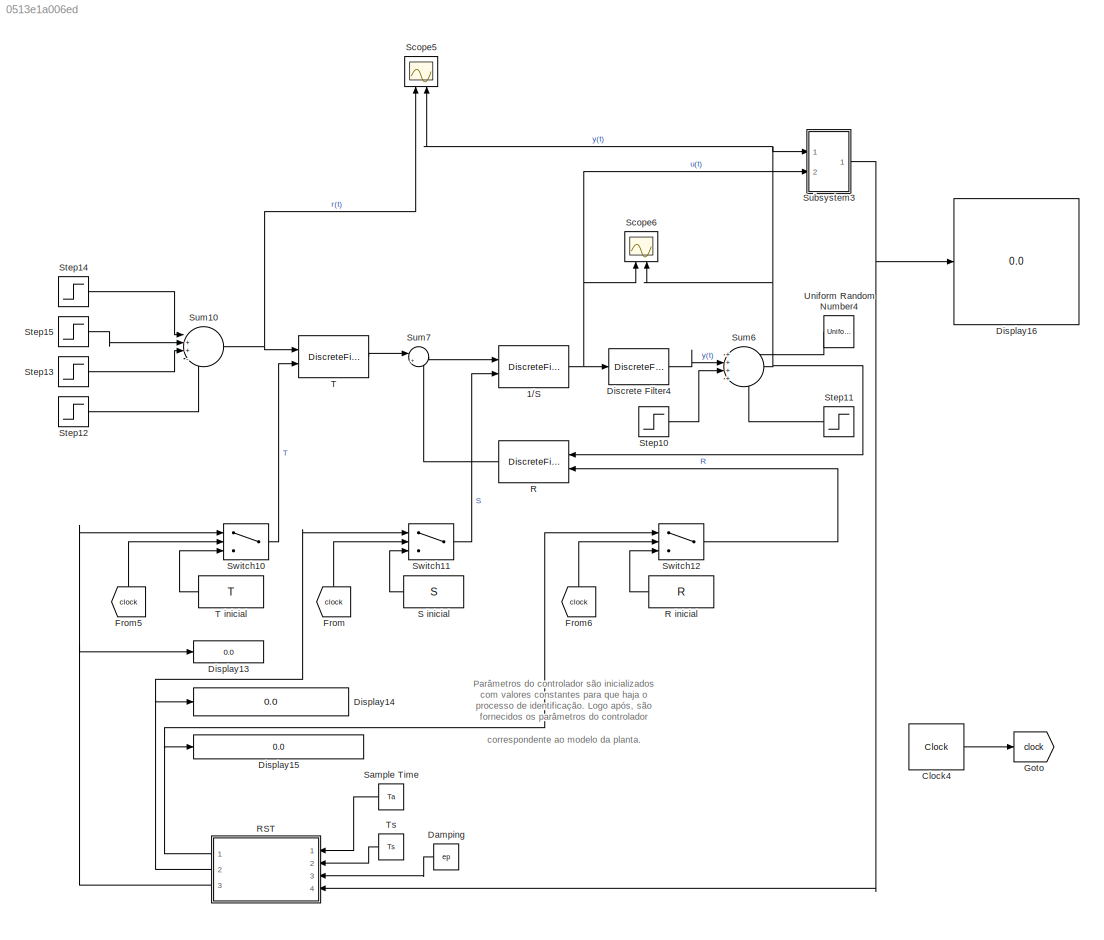
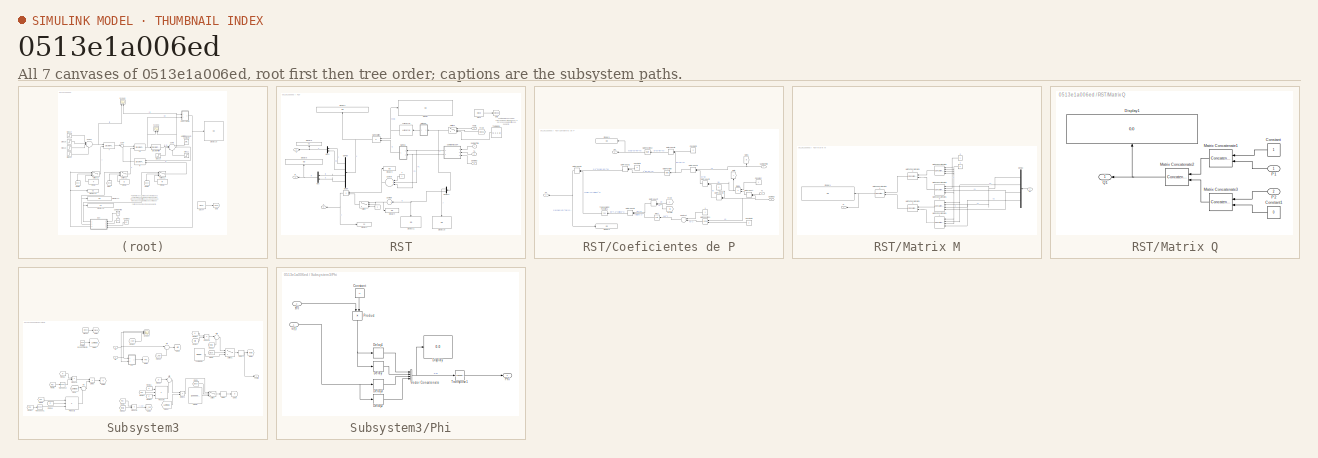
[diagram: thumbnail index - all 7 canvases of the model, root first then tree order]
MODEL slx_0513e1a006ed
KIND model
CONFIG AbsTol = auto
CONFIG EnableMultiTasking = off
CONFIG FixedStep = auto
CONFIG MaxStep = auto
CONFIG MinStep = auto
CONFIG RelTol = 1e-3
CONFIG SampleTimeConstraint = Unconstrained
CONFIG Solver = VariableStepAuto
CONFIG SolverName = VariableStepAuto
CONFIG StartTime = 0.0
CONFIG StopTime = 100
BLOCK [DiscreteFilter] 1//S
  Denominator = 1
  DenominatorSource = Input port
  InputPortMap = u0,p3
  Numerator = 1
  Ports = [2, 1]
  a0EqualsOne = on
BLOCK [Clock] Clock4
  DisplayTime = on
BLOCK [Constant] Damping
  Value = ep
BLOCK [DiscreteFilter] Discrete Filter4
  Denominator = A
  InputPortMap = u0
  Numerator = B
  Ports = [1, 1]
  SampleTime = 0.1
  a0EqualsOne = on
BLOCK [Display] Display13
  Decimation = 1
  Ports = [1]
BLOCK [Display] Display14
  Decimation = 1
  Ports = [1]
BLOCK [Display] Display15
  Decimation = 1
  Ports = [1]
BLOCK [Display] Display16
  Decimation = 1
  Ports = [1]
BLOCK [From] From
  GotoTag = clock
BLOCK [From] From5
  GotoTag = clock
BLOCK [From] From6
  GotoTag = clock
BLOCK [Goto] Goto
  GotoTag = clock
BLOCK [DiscreteFilter] R
  Denominator = 1
  InputPortMap = u0,p1
  Numerator = [-620.2 131.3]
  NumeratorSource = Input port
  Ports = [2, 1]
BLOCK [Constant] R inicial 
  Value = R
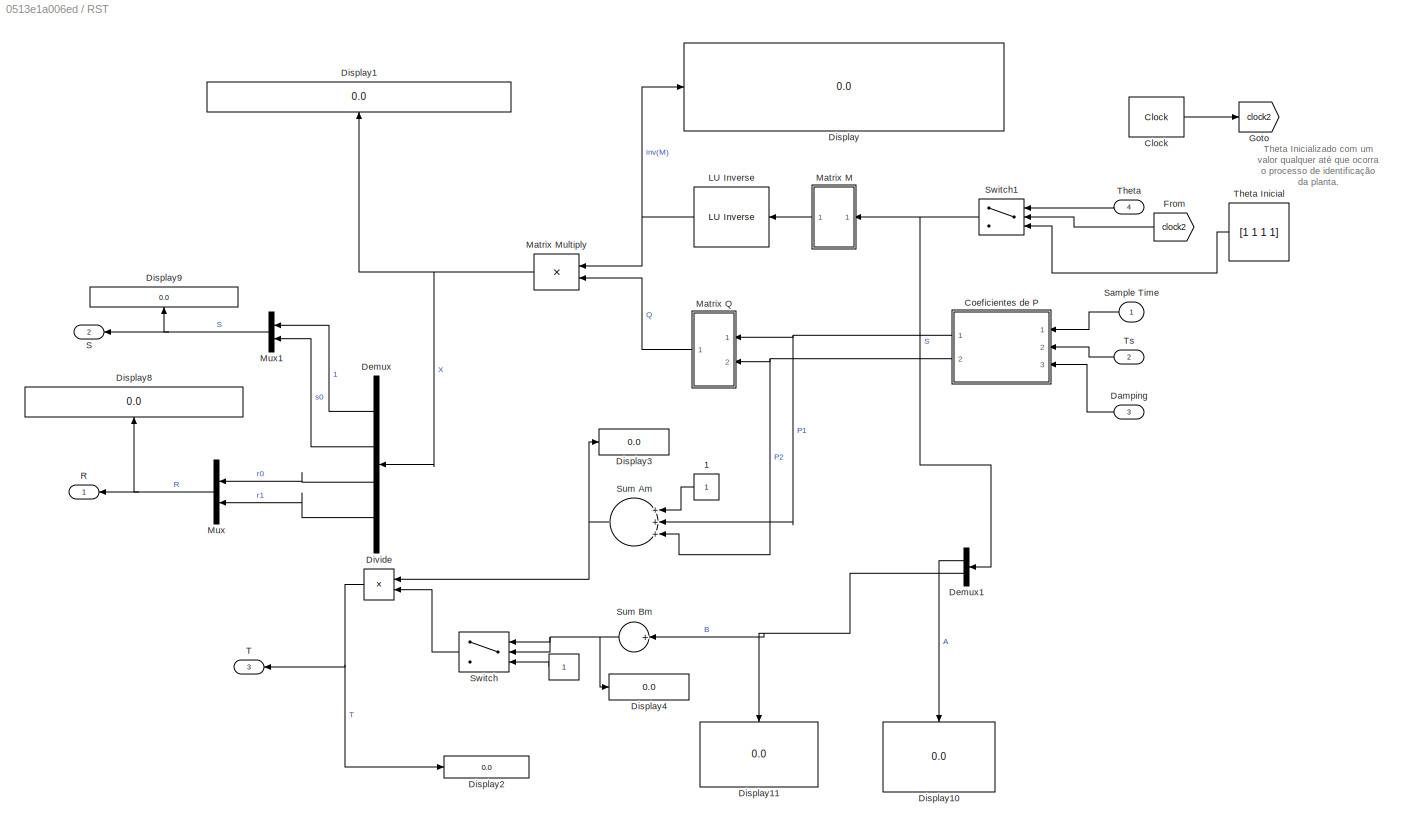
BLOCK [SubSystem] RST
  Ports = [4, 3]
  RequestExecContextInheritance = off
BLOCK [Constant] RST/ 
BLOCK [Reference] RST/ LU Inverse  REF=dspinverses/ LU Inverse
  Ports = [1, 1]
  SourceBlock = dspinverses/ LU Inverse
  SourceProductBaseCode = DS
  SourceProductName = DSP System Toolbox
  SourceType = LU Inverse
BLOCK [Constant] RST/1
BLOCK [Clock] RST/Clock
  DisplayTime = on
BLOCK [SubSystem] RST/Coeficientes de P
  Ports = [3, 2]
  RequestExecContextInheritance = off
BLOCK [Constant] RST/Coeficientes de P/ 
  Value = -1
BLOCK [Constant] RST/Coeficientes de P/1
BLOCK [Constant] RST/Coeficientes de P/Constant
  Value = 4
BLOCK [Constant] RST/Coeficientes de P/Constant1
  Value = -2
BLOCK [Constant] RST/Coeficientes de P/Constant2
  Value = 2
BLOCK [Constant] RST/Coeficientes de P/Constant3
  Value = 2
BLOCK [Inport] RST/Coeficientes de P/Damping
  IconDisplay = Port number
  Port = 3
BLOCK [Display] RST/Coeficientes de P/Display1
  Decimation = 1
  Ports = [1]
BLOCK [Display] RST/Coeficientes de P/Display3
  Decimation = 1
  Ports = [1]
BLOCK [Product] RST/Coeficientes de P/Divide
  InputSameDT = off
  Inputs = */
  OutDataTypeStr = Inherit: Inherit via internal rule
  Ports = [2, 1]
  RndMeth = Floor
  SaturateOnIntegerOverflow = off
BLOCK [DotProduct] RST/Coeficientes de P/Dot Product
  OutDataTypeStr = Inherit: Inherit via internal rule
BLOCK [DotProduct] RST/Coeficientes de P/Dot Product1
  OutDataTypeStr = Inherit: Inherit via internal rule
BLOCK [DotProduct] RST/Coeficientes de P/Dot Product2
  OutDataTypeStr = Inherit: Inherit via internal rule
BLOCK [DotProduct] RST/Coeficientes de P/Dot Product3
  OutDataTypeStr = Inherit: Inherit via internal rule
BLOCK [DotProduct] RST/Coeficientes de P/Dot Product4
  OutDataTypeStr = Inherit: Inherit via internal rule
BLOCK [DotProduct] RST/Coeficientes de P/Dot Product5
  OutDataTypeStr = Inherit: Inherit via internal rule
BLOCK [DotProduct] RST/Coeficientes de P/Dot Product6
  OutDataTypeStr = Inherit: Inherit via internal rule
BLOCK [DotProduct] RST/Coeficientes de P/Dot Product7
  OutDataTypeStr = Inherit: Inherit via internal rule
BLOCK [DotProduct] RST/Coeficientes de P/Dot Product8
  OutDataTypeStr = Inherit: Inherit via internal rule
BLOCK [From] RST/Coeficientes de P/From
BLOCK [From] RST/Coeficientes de P/From1
  GotoTag = B
BLOCK [Goto] RST/Coeficientes de P/Goto
BLOCK [Goto] RST/Coeficientes de P/Goto1
  GotoTag = B
BLOCK [Math] RST/Coeficientes de P/Math Function
  Ports = [1, 1]
BLOCK [Math] RST/Coeficientes de P/Math Function1
  Operator = pow
  Ports = [2, 1]
BLOCK [Math] RST/Coeficientes de P/Math Function2
  Ports = [1, 1]
BLOCK [Outport] RST/Coeficientes de P/P1
  IconDisplay = Port number
BLOCK [Outport] RST/Coeficientes de P/P2
  IconDisplay = Port number
  Port = 2
BLOCK [Inport] RST/Coeficientes de P/Sample Time
  IconDisplay = Port number
BLOCK [Sqrt] RST/Coeficientes de P/Sqrt
BLOCK [Sum] RST/Coeficientes de P/Subtract
  InputSameDT = off
  Inputs = +-
  OutDataTypeStr = Inherit: Inherit via internal rule
  Ports = [2, 1]
  SaturateOnIntegerOverflow = off
BLOCK [Trigonometry] RST/Coeficientes de P/Trigonometric Function1
  Operator = cos
  Ports = [1, 1]
BLOCK [Inport] RST/Coeficientes de P/Ts
  IconDisplay = Port number
  Port = 2
BLOCK [Inport] RST/Damping
  IconDisplay = Port number
  Port = 3
BLOCK [Demux] RST/Demux
  DisplayOption = bar
  Ports = [1, 4]
BLOCK [Demux] RST/Demux1
  DisplayOption = bar
  Outputs = 2
  Ports = [1, 2]
BLOCK [Display] RST/Display
  Decimation = 1
  Ports = [1]
BLOCK [Display] RST/Display1
  Decimation = 1
  Ports = [1]
BLOCK [Display] RST/Display10
  Decimation = 1
  Ports = [1]
BLOCK [Display] RST/Display11
  Decimation = 1
  Ports = [1]
BLOCK [Display] RST/Display2
  Decimation = 1
  Ports = [1]
BLOCK [Display] RST/Display3
  Decimation = 1
  Ports = [1]
BLOCK [Display] RST/Display4
  Decimation = 1
  Ports = [1]
BLOCK [Display] RST/Display8
  Decimation = 1
  Ports = [1]
BLOCK [Display] RST/Display9
  Decimation = 1
  Ports = [1]
BLOCK [Product] RST/Divide
  InputSameDT = off
  Inputs = */
  OutDataTypeStr = Inherit: Inherit via internal rule
  Ports = [2, 1]
  RndMeth = Floor
  SaturateOnIntegerOverflow = off
BLOCK [From] RST/From
  GotoTag = clock2
BLOCK [Goto] RST/Goto
  GotoTag = clock2
BLOCK [SubSystem] RST/Matrix M
  Ports = [1, 1]
  RequestExecContextInheritance = off
BLOCK [Constant] RST/Matrix M/ 1
  Value = 0
BLOCK [Constant] RST/Matrix M/2
BLOCK [Demux] RST/Matrix M/Demux
  DisplayOption = bar
  Ports = [1, 4]
BLOCK [Display] RST/Matrix M/Display1
  Decimation = 1
  Ports = [1]
BLOCK [Inport] RST/Matrix M/In1
  IconDisplay = Port number
BLOCK [Outport] RST/Matrix M/M
  IconDisplay = Port number
BLOCK [Concatenate] RST/Matrix M/Matrix Concatenate10
  ConcatenateDimension = 2
  Mode = Multidimensional array
  NumInputs = 4
  Ports = [4, 1]
BLOCK [Concatenate] RST/Matrix M/Matrix Concatenate11
  ConcatenateDimension = 2
  Mode = Multidimensional array
  NumInputs = 4
  Ports = [4, 1]
BLOCK [Concatenate] RST/Matrix M/Matrix Concatenate12
  Mode = Multidimensional array
  Ports = [2, 1]
BLOCK [Concatenate] RST/Matrix M/Matrix Concatenate13
  Mode = Multidimensional array
  Ports = [2, 1]
BLOCK [Concatenate] RST/Matrix M/Matrix Concatenate14
  Mode = Multidimensional array
  Ports = [2, 1]
BLOCK [Concatenate] RST/Matrix M/Matrix Concatenate6
  ConcatenateDimension = 2
  Mode = Multidimensional array
  NumInputs = 4
  Ports = [4, 1]
BLOCK [Concatenate] RST/Matrix M/Matrix Concatenate9
  ConcatenateDimension = 2
  Mode = Multidimensional array
  NumInputs = 4
  Ports = [4, 1]
BLOCK [Product] RST/Matrix Multiply
  InputSameDT = off
  Multiplication = Matrix(*)
  OutDataTypeStr = Inherit: Inherit via internal rule
  Ports = [2, 1]
  RndMeth = Floor
  SaturateOnIntegerOverflow = off
BLOCK [SubSystem] RST/Matrix Q
  Ports = [2, 1]
  RequestExecContextInheritance = off
BLOCK [Constant] RST/Matrix Q/Constant
BLOCK [Constant] RST/Matrix Q/Constant1
  Value = 0
BLOCK [Display] RST/Matrix Q/Display1
  Decimation = 1
  Ports = [1]
BLOCK [Concatenate] RST/Matrix Q/Matrix Concatenate1
  Mode = Multidimensional array
  Ports = [2, 1]
BLOCK [Concatenate] RST/Matrix Q/Matrix Concatenate2
  Mode = Multidimensional array
  Ports = [2, 1]
BLOCK [Concatenate] RST/Matrix Q/Matrix Concatenate3
  Mode = Multidimensional array
  Ports = [2, 1]
BLOCK [Inport] RST/Matrix Q/P1
  IconDisplay = Port number
BLOCK [Inport] RST/Matrix Q/P2
  IconDisplay = Port number
  Port = 2
BLOCK [Outport] RST/Matrix Q/Q1
  IconDisplay = Port number
BLOCK [Mux] RST/Mux
  DisplayOption = bar
  Inputs = 2
  Ports = [2, 1]
BLOCK [Mux] RST/Mux1
  DisplayOption = bar
  Inputs = 2
  Ports = [2, 1]
BLOCK [Outport] RST/R
  IconDisplay = Port number
BLOCK [Outport] RST/S
  IconDisplay = Port number
  Port = 2
BLOCK [Inport] RST/Sample Time
  IconDisplay = Port number
BLOCK [Sum] RST/Sum Am
  InputSameDT = off
  Inputs = +++
  OutDataTypeStr = Inherit: Inherit via internal rule
  Ports = [3, 1]
  SaturateOnIntegerOverflow = off
BLOCK [Sum] RST/Sum Bm
  InputSameDT = off
  Inputs = +
  OutDataTypeStr = Inherit: Inherit via internal rule
  Ports = [1, 1]
  SaturateOnIntegerOverflow = off
BLOCK [Switch] RST/Switch
  Criteria = u2 > Threshold
  InputSameDT = off
  SaturateOnIntegerOverflow = off
BLOCK [Switch] RST/Switch1
  Criteria = u2 > Threshold
  InputSameDT = off
  SaturateOnIntegerOverflow = off
  Threshold = 1
BLOCK [Outport] RST/T
  IconDisplay = Port number
  Port = 3
BLOCK [Inport] RST/Theta
  IconDisplay = Port number
  Port = 4
BLOCK [Constant] RST/Theta Inicial
  Value = [1 1 1 1]
BLOCK [Inport] RST/Ts
  IconDisplay = Port number
  Port = 2
BLOCK [Constant] S inicial 
  Value = S
BLOCK [Constant] Sample Time
  Value = Ta
BLOCK [Scope] Scope5
  Floating = off
  NumInputPorts = 2
  Ports = [2]
  ScopeSpecificationString = Simulink.scopes.TimeScopeBlockCfg('CurrentConfiguration', extmgr.ConfigurationSet(extmgr.Configuration('Core','General UI',true),extmgr.Configuration('Core','Source UI',true),extmgr.Configuration('Sources','WiredSimulink',true,'DataLoggingVariableName','ScopeData7'),extmgr.Configuration('Visuals','Time Domain',true,'SerializedDisplays',{struct('MinYLimReal','-44407190189782154755413876628075905370...<+2514ch>
BLOCK [Scope] Scope6
  Floating = off
  NumInputPorts = 2
  Ports = [2]
  ScopeSpecificationString = Simulink.scopes.TimeScopeBlockCfg('CurrentConfiguration', extmgr.ConfigurationSet(extmgr.Configuration('Core','General UI',true,'FigureColor',[0.156862745098039 0.156862745098039 0.156862745098039]),extmgr.Configuration('Core','Source UI',true),extmgr.Configuration('Sources','WiredSimulink',true,'DataLoggingVariableName','ScopeData8','DataLoggingSaveFormat','StructureWithTime','DataLoggingDecimati...<+3156ch>
BLOCK [Step] Step10
  SampleTime = 0
  Time = 50
BLOCK [Step] Step11
  After = -1
  SampleTime = 0
  Time = 51
BLOCK [Step] Step12
  SampleTime = 0
  Time = 30
BLOCK [Step] Step13
  After = 2
  SampleTime = 0
  Time = 20
BLOCK [Step] Step14
  SampleTime = 0
  Time = 0
BLOCK [Step] Step15
  After = 3
  SampleTime = 0
  Time = 10
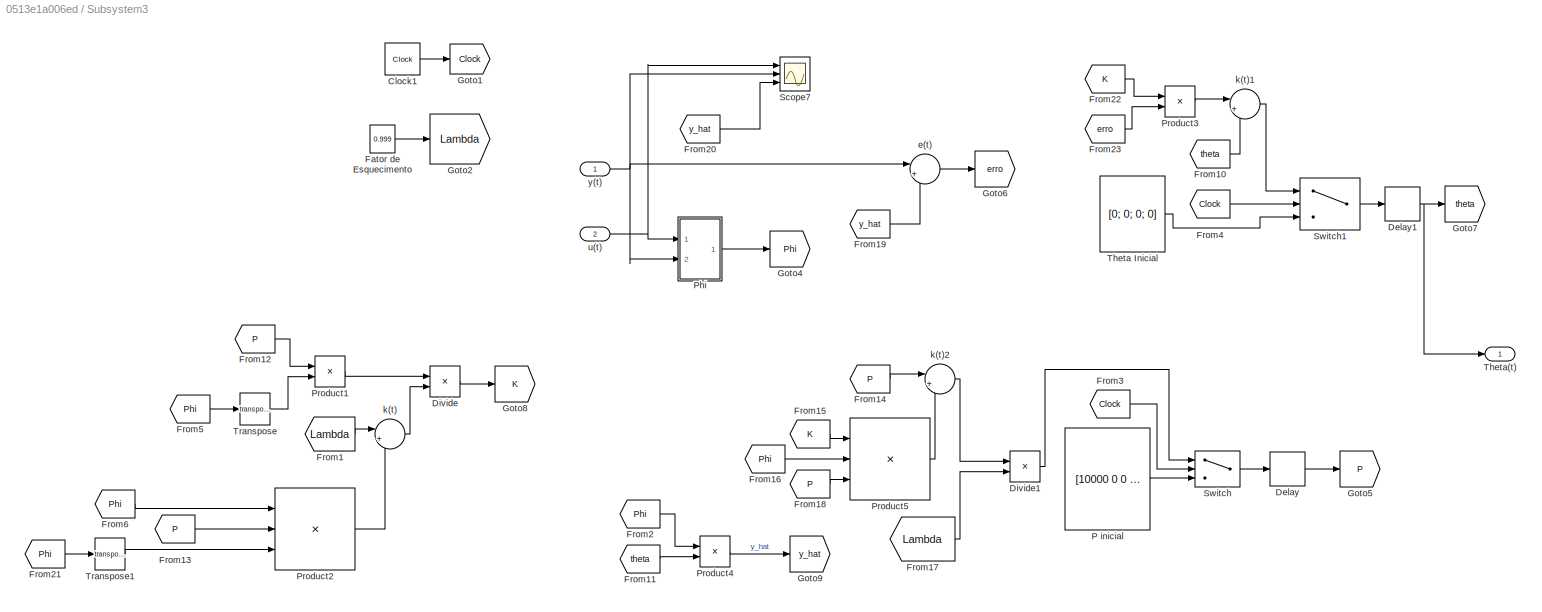
BLOCK [SubSystem] Subsystem3
  Ports = [2, 1]
  RequestExecContextInheritance = off
BLOCK [Clock] Subsystem3/Clock1
BLOCK [Delay] Subsystem3/Delay
  DelayLength = 1
  InitialCondition = 0
  InputPortMap = u0
  Ports = [1, 1]
BLOCK [Delay] Subsystem3/Delay1
  DelayLength = 1
  InitialCondition = 0
  InputPortMap = u0
  Ports = [1, 1]
BLOCK [Product] Subsystem3/Divide
  InputSameDT = off
  Inputs = */
  OutDataTypeStr = Inherit: Inherit via internal rule
  Ports = [2, 1]
  RndMeth = Floor
  SaturateOnIntegerOverflow = off
BLOCK [Product] Subsystem3/Divide1
  InputSameDT = off
  Inputs = */
  OutDataTypeStr = Inherit: Inherit via internal rule
  Ports = [2, 1]
  RndMeth = Floor
  SaturateOnIntegerOverflow = off
BLOCK [Constant] Subsystem3/Fator de Esquecimento 
  Value = 0.999
BLOCK [From] Subsystem3/From1
  GotoTag = Lambda
BLOCK [From] Subsystem3/From10
  GotoTag = theta
BLOCK [From] Subsystem3/From11
  GotoTag = theta
BLOCK [From] Subsystem3/From12
  GotoTag = P
BLOCK [From] Subsystem3/From13
  GotoTag = P
BLOCK [From] Subsystem3/From14
  GotoTag = P
BLOCK [From] Subsystem3/From15
  GotoTag = K
BLOCK [From] Subsystem3/From16
  GotoTag = Phi
BLOCK [From] Subsystem3/From17
  GotoTag = Lambda
BLOCK [From] Subsystem3/From18
  GotoTag = P
BLOCK [From] Subsystem3/From19
  GotoTag = y_hat
BLOCK [From] Subsystem3/From2
  GotoTag = Phi
BLOCK [From] Subsystem3/From20
  GotoTag = y_hat
BLOCK [From] Subsystem3/From21
  GotoTag = Phi
BLOCK [From] Subsystem3/From22
  GotoTag = K
BLOCK [From] Subsystem3/From23
  GotoTag = erro
BLOCK [From] Subsystem3/From3
  GotoTag = Clock
BLOCK [From] Subsystem3/From4
  GotoTag = Clock
BLOCK [From] Subsystem3/From5
  GotoTag = Phi
BLOCK [From] Subsystem3/From6
  GotoTag = Phi
BLOCK [Goto] Subsystem3/Goto1
  GotoTag = Clock
BLOCK [Goto] Subsystem3/Goto2
  GotoTag = Lambda
BLOCK [Goto] Subsystem3/Goto4
  GotoTag = Phi
BLOCK [Goto] Subsystem3/Goto5
  GotoTag = P
BLOCK [Goto] Subsystem3/Goto6
  GotoTag = erro
BLOCK [Goto] Subsystem3/Goto7
  GotoTag = theta
BLOCK [Goto] Subsystem3/Goto8
  GotoTag = K
BLOCK [Goto] Subsystem3/Goto9
  GotoTag = y_hat
BLOCK [Constant] Subsystem3/P inicial
  Value = [10000 0 0 0; 0 10000 0 0; 0 0 10000 0; 0 0 0 10000]
BLOCK [SubSystem] Subsystem3/Phi
  Ports = [2, 1]
  RequestExecContextInheritance = off
BLOCK [Constant] Subsystem3/Phi/Constant
  Value = -1
BLOCK [Delay] Subsystem3/Phi/Delay
  InputPortMap = u0
  Ports = [1, 1]
BLOCK [Delay] Subsystem3/Phi/Delay1
  DelayLength = 1
  InputPortMap = u0
  Ports = [1, 1]
BLOCK [Delay] Subsystem3/Phi/Delay2
  InputPortMap = u0
  Ports = [1, 1]
BLOCK [Delay] Subsystem3/Phi/Delay3
  DelayLength = 1
  InputPortMap = u0
  Ports = [1, 1]
BLOCK [Display] Subsystem3/Phi/Display
  Decimation = 1
  Ports = [1]
BLOCK [Outport] Subsystem3/Phi/Phi
  IconDisplay = Port number
BLOCK [Product] Subsystem3/Phi/Product
  InputSameDT = off
  OutDataTypeStr = Inherit: Inherit via internal rule
  Ports = [2, 1]
  RndMeth = Floor
  SaturateOnIntegerOverflow = off
BLOCK [Math] Subsystem3/Phi/Transpose1
  Operator = transpose
  Ports = [1, 1]
BLOCK [Concatenate] Subsystem3/Phi/Vector Concatenate
  NumInputs = 4
  Ports = [4, 1]
BLOCK [Inport] Subsystem3/Phi/u(t)
  IconDisplay = Port number
BLOCK [Inport] Subsystem3/Phi/y(t)
  IconDisplay = Port number
  Port = 2
BLOCK [Product] Subsystem3/Product1
  InputSameDT = off
  Multiplication = Matrix(*)
  OutDataTypeStr = Inherit: Inherit via internal rule
  Ports = [2, 1]
  RndMeth = Floor
  SaturateOnIntegerOverflow = off
BLOCK [Product] Subsystem3/Product2
  InputSameDT = off
  Inputs = 3
  Multiplication = Matrix(*)
  OutDataTypeStr = Inherit: Inherit via internal rule
  Ports = [3, 1]
  RndMeth = Floor
  SaturateOnIntegerOverflow = off
BLOCK [Product] Subsystem3/Product3
  InputSameDT = off
  Multiplication = Matrix(*)
  OutDataTypeStr = Inherit: Inherit via internal rule
  Ports = [2, 1]
  RndMeth = Floor
  SaturateOnIntegerOverflow = off
BLOCK [Product] Subsystem3/Product4
  InputSameDT = off
  Multiplication = Matrix(*)
  OutDataTypeStr = Inherit: Inherit via internal rule
  Ports = [2, 1]
  RndMeth = Floor
  SaturateOnIntegerOverflow = off
BLOCK [Product] Subsystem3/Product5
  InputSameDT = off
  Inputs = 3
  Multiplication = Matrix(*)
  OutDataTypeStr = Inherit: Inherit via internal rule
  Ports = [3, 1]
  RndMeth = Floor
  SaturateOnIntegerOverflow = off
BLOCK [Scope] Subsystem3/Scope7
  Floating = off
  NumInputPorts = 3
  Ports = [3]
  ScopeSpecificationString = Simulink.scopes.TimeScopeBlockCfg('CurrentConfiguration', extmgr.ConfigurationSet(extmgr.Configuration('Core','General UI',true,'FigureColor',[0.156862745098039 0.156862745098039 0.156862745098039]),extmgr.Configuration('Core','Source UI',true),extmgr.Configuration('Sources','WiredSimulink',true,'DataLoggingVariableName','ScopeData1','DataLoggingSaveFormat','StructureWithTime','DataLoggingDecimati...<+3159ch>
BLOCK [Switch] Subsystem3/Switch
  Criteria = u2 > Threshold
  InputSameDT = off
  SaturateOnIntegerOverflow = off
BLOCK [Switch] Subsystem3/Switch1
  Criteria = u2 > Threshold
  InputSameDT = off
  SaturateOnIntegerOverflow = off
BLOCK [Constant] Subsystem3/Theta Inicial 
  Value = [0; 0; 0; 0]
BLOCK [Outport] Subsystem3/Theta(t) 
  IconDisplay = Port number
BLOCK [Math] Subsystem3/Transpose
  Operator = transpose
  Ports = [1, 1]
BLOCK [Math] Subsystem3/Transpose1
  Operator = transpose
  Ports = [1, 1]
BLOCK [Sum] Subsystem3/e(t)
  IconShape = round
  InputSameDT = off
  Inputs = |+-
  OutDataTypeStr = Inherit: Inherit via internal rule
  Ports = [2, 1]
  SaturateOnIntegerOverflow = off
BLOCK [Sum] Subsystem3/k(t)
  IconShape = round
  InputSameDT = off
  Inputs = |++
  OutDataTypeStr = Inherit: Inherit via internal rule
  Ports = [2, 1]
  SaturateOnIntegerOverflow = off
BLOCK [Sum] Subsystem3/k(t)1
  IconShape = round
  InputSameDT = off
  Inputs = |++
  OutDataTypeStr = Inherit: Inherit via internal rule
  Ports = [2, 1]
  SaturateOnIntegerOverflow = off
BLOCK [Sum] Subsystem3/k(t)2
  IconShape = round
  InputSameDT = off
  Inputs = |+-
  OutDataTypeStr = Inherit: Inherit via internal rule
  Ports = [2, 1]
  SaturateOnIntegerOverflow = off
BLOCK [Inport] Subsystem3/u(t) 
  IconDisplay = Port number
  Port = 2
BLOCK [Inport] Subsystem3/y(t)
  IconDisplay = Port number
BLOCK [Sum] Sum10
  IconShape = round
  InputSameDT = off
  Inputs = |++-+
  OutDataTypeStr = Inherit: Inherit via internal rule
  Ports = [4, 1]
  SaturateOnIntegerOverflow = off
BLOCK [Sum] Sum6
  IconShape = round
  InputSameDT = off
  Inputs = ++++
  OutDataTypeStr = Inherit: Inherit via internal rule
  Ports = [4, 1]
  SaturateOnIntegerOverflow = off
BLOCK [Sum] Sum7
  IconShape = round
  InputSameDT = off
  Inputs = |+-
  OutDataTypeStr = Inherit: Inherit via internal rule
  Ports = [2, 1]
  SaturateOnIntegerOverflow = off
BLOCK [Switch] Switch10
  Criteria = u2 > Threshold
  InputSameDT = off
  SaturateOnIntegerOverflow = off
  Threshold = 1
BLOCK [Switch] Switch11
  Criteria = u2 > Threshold
  InputSameDT = off
  SaturateOnIntegerOverflow = off
  Threshold = 1
BLOCK [Switch] Switch12
  Criteria = u2 > Threshold
  InputSameDT = off
  SaturateOnIntegerOverflow = off
  Threshold = 1
BLOCK [DiscreteFilter] T
  Denominator = 1
  InputPortMap = u0,p1
  Numerator = 13.39
  NumeratorSource = Input port
  Ports = [2, 1]
BLOCK [Constant] T inicial
  Value = T
BLOCK [Constant] Ts
  Value = Ts
BLOCK [UniformRandomNumber] Uniform Random Number4
  Maximum = 0.1
  Minimum = -0.1
  SampleTime = 0
ANNOTATION (root): Parâmetros do controlador são inicializados com valores constantes para que haja o processo de identificação. Logo após, são fornecidos os parâmetros do controlador correspondente ao modelo da planta.
ANNOTATION RST: Theta Inicializado com um valor qualquer até que ocorra o processo de identificação da planta.
NET 1//S:1 -> Discrete Filter4:1, Scope6:1, Subsystem3:2
LINE Clock4:1 -> Goto:1
LINE Damping:1 -> RST:3
LINE Discrete Filter4:1 -> Sum6:2
LINE From5:1 -> Switch10:2
LINE From6:1 -> Switch12:2
LINE From:1 -> Switch11:2
LINE R inicial :1 -> Switch12:3
LINE R:1 -> Sum7:2
LINE RST/ :1 -> RST/Switch:3
NET RST/ LU Inverse:1 -> RST/Display:1, RST/Matrix Multiply:1
LINE RST/1:1 -> RST/Sum Am:1
LINE RST/Clock:1 -> RST/Goto:1
LINE RST/Coeficientes de P/ :1 -> RST/Coeficientes de P/Dot Product3:1
LINE RST/Coeficientes de P/1:1 -> RST/Coeficientes de P/Subtract:1
LINE RST/Coeficientes de P/Constant1:1 -> RST/Coeficientes de P/Dot Product1:1
LINE RST/Coeficientes de P/Constant2:1 -> RST/Coeficientes de P/Math Function1:2
LINE RST/Coeficientes de P/Constant3:1 -> RST/Coeficientes de P/Dot Product8:1
LINE RST/Coeficientes de P/Constant:1 -> RST/Coeficientes de P/Divide:1
NET RST/Coeficientes de P/Damping:1 -> RST/Coeficientes de P/Dot Product3:2, RST/Coeficientes de P/Dot Product:2, RST/Coeficientes de P/Math Function1:1
NET RST/Coeficientes de P/Divide:1 -> RST/Coeficientes de P/Dot Product2:1, RST/Coeficientes de P/Goto:1
LINE RST/Coeficientes de P/Dot Product1:1 -> RST/Coeficientes de P/Dot Product5:1
LINE RST/Coeficientes de P/Dot Product2:1 -> RST/Coeficientes de P/Dot Product4:2
LINE RST/Coeficientes de P/Dot Product3:1 -> RST/Coeficientes de P/Dot Product2:2
NET RST/Coeficientes de P/Dot Product4:1 -> RST/Coeficientes de P/Dot Product8:2, RST/Coeficientes de P/Math Function:1
NET RST/Coeficientes de P/Dot Product5:1 -> RST/Coeficientes de P/Display3:1, RST/Coeficientes de P/P1:1
LINE RST/Coeficientes de P/Dot Product6:1 -> RST/Coeficientes de P/Trigonometric Function1:1
LINE RST/Coeficientes de P/Dot Product7:1 -> RST/Coeficientes de P/Dot Product6:1
LINE RST/Coeficientes de P/Dot Product8:1 -> RST/Coeficientes de P/Math Function2:1
LINE RST/Coeficientes de P/Dot Product:1 -> RST/Coeficientes de P/Divide:2
LINE RST/Coeficientes de P/From1:1 -> RST/Coeficientes de P/Dot Product7:2
LINE RST/Coeficientes de P/From:1 -> RST/Coeficientes de P/Dot Product7:1
LINE RST/Coeficientes de P/Math Function1:1 -> RST/Coeficientes de P/Subtract:2
NET RST/Coeficientes de P/Math Function2:1 -> RST/Coeficientes de P/Display1:1, RST/Coeficientes de P/P2:1
LINE RST/Coeficientes de P/Math Function:1 -> RST/Coeficientes de P/Dot Product1:2
NET RST/Coeficientes de P/Sample Time:1 -> RST/Coeficientes de P/Dot Product4:1, RST/Coeficientes de P/Goto1:1
LINE RST/Coeficientes de P/Sqrt:1 -> RST/Coeficientes de P/Dot Product6:2
LINE RST/Coeficientes de P/Subtract:1 -> RST/Coeficientes de P/Sqrt:1
LINE RST/Coeficientes de P/Trigonometric Function1:1 -> RST/Coeficientes de P/Dot Product5:2
LINE RST/Coeficientes de P/Ts:1 -> RST/Coeficientes de P/Dot Product:1
NET RST/Coeficientes de P:1 -> RST/Matrix Q:1, RST/Sum Am:2
NET RST/Coeficientes de P:2 -> RST/Matrix Q:2, RST/Sum Am:3
LINE RST/Damping:1 -> RST/Coeficientes de P:3
LINE RST/Demux1:1 -> RST/Display10:1
NET RST/Demux1:2 -> RST/Display11:1, RST/Sum Bm:1
LINE RST/Demux:1 -> RST/Mux1:1
LINE RST/Demux:2 -> RST/Mux1:2
LINE RST/Demux:3 -> RST/Mux:1
LINE RST/Demux:4 -> RST/Mux:2
NET RST/Divide:1 -> RST/Display2:1, RST/T:1
LINE RST/From:1 -> RST/Switch1:2
NET RST/Matrix M/ 1:1 -> RST/Matrix M/Matrix Concatenate11:1, RST/Matrix M/Matrix Concatenate11:3, RST/Matrix M/Matrix Concatenate6:2, RST/Matrix M/Matrix Concatenate6:3, RST/Matrix M/Matrix Concatenate6:4, RST/Matrix M/Matrix Concatenate9:4
NET RST/Matrix M/2:1 -> RST/Matrix M/Matrix Concatenate6:1, RST/Matrix M/Matrix Concatenate9:2
NET RST/Matrix M/Demux:1 -> RST/Matrix M/Matrix Concatenate10:2, RST/Matrix M/Matrix Concatenate9:1
NET RST/Matrix M/Demux:2 -> RST/Matrix M/Matrix Concatenate10:1, RST/Matrix M/Matrix Concatenate11:2
NET RST/Matrix M/Demux:3 -> RST/Matrix M/Matrix Concatenate10:4, RST/Matrix M/Matrix Concatenate9:3
NET RST/Matrix M/Demux:4 -> RST/Matrix M/Matrix Concatenate10:3, RST/Matrix M/Matrix Concatenate11:4
LINE RST/Matrix M/In1:1 -> RST/Matrix M/Demux:1
LINE RST/Matrix M/Matrix Concatenate10:1 -> RST/Matrix M/Matrix Concatenate13:1
LINE RST/Matrix M/Matrix Concatenate11:1 -> RST/Matrix M/Matrix Concatenate13:2
LINE RST/Matrix M/Matrix Concatenate12:1 -> RST/Matrix M/Matrix Concatenate14:1
LINE RST/Matrix M/Matrix Concatenate13:1 -> RST/Matrix M/Matrix Concatenate14:2
NET RST/Matrix M/Matrix Concatenate14:1 -> RST/Matrix M/Display1:1, RST/Matrix M/M:1
LINE RST/Matrix M/Matrix Concatenate6:1 -> RST/Matrix M/Matrix Concatenate12:1
LINE RST/Matrix M/Matrix Concatenate9:1 -> RST/Matrix M/Matrix Concatenate12:2
LINE RST/Matrix M:1 -> RST/ LU Inverse:1
NET RST/Matrix Multiply:1 -> RST/Demux:1, RST/Display1:1
LINE RST/Matrix Q/Constant1:1 -> RST/Matrix Q/Matrix Concatenate3:2
LINE RST/Matrix Q/Constant:1 -> RST/Matrix Q/Matrix Concatenate1:1
LINE RST/Matrix Q/Matrix Concatenate1:1 -> RST/Matrix Q/Matrix Concatenate2:1
NET RST/Matrix Q/Matrix Concatenate2:1 -> RST/Matrix Q/Display1:1, RST/Matrix Q/Q1:1
LINE RST/Matrix Q/Matrix Concatenate3:1 -> RST/Matrix Q/Matrix Concatenate2:2
LINE RST/Matrix Q/P1:1 -> RST/Matrix Q/Matrix Concatenate1:2
LINE RST/Matrix Q/P2:1 -> RST/Matrix Q/Matrix Concatenate3:1
LINE RST/Matrix Q:1 -> RST/Matrix Multiply:2
NET RST/Mux1:1 -> RST/Display9:1, RST/S:1
NET RST/Mux:1 -> RST/Display8:1, RST/R:1
LINE RST/Sample Time:1 -> RST/Coeficientes de P:1
NET RST/Sum Am:1 -> RST/Display3:1, RST/Divide:1
NET RST/Sum Bm:1 -> RST/Display4:1, RST/Switch:1, RST/Switch:2
NET RST/Switch1:1 -> RST/Demux1:1, RST/Matrix M:1
LINE RST/Switch:1 -> RST/Divide:2
LINE RST/Theta Inicial:1 -> RST/Switch1:3
LINE RST/Theta:1 -> RST/Switch1:1
LINE RST/Ts:1 -> RST/Coeficientes de P:2
NET RST:1 -> Display15:1, Switch12:1
NET RST:2 -> Display14:1, Switch11:1
NET RST:3 -> Display13:1, Switch10:1
LINE S inicial :1 -> Switch11:3
LINE Sample Time:1 -> RST:1
LINE Step10:1 -> Sum6:3
LINE Step11:1 -> Sum6:4
LINE Step12:1 -> Sum10:4
LINE Step13:1 -> Sum10:3
LINE Step14:1 -> Sum10:1
LINE Step15:1 -> Sum10:2
LINE Subsystem3/Clock1:1 -> Subsystem3/Goto1:1
NET Subsystem3/Delay1:1 -> Subsystem3/Goto7:1, Subsystem3/Theta(t) :1
LINE Subsystem3/Delay:1 -> Subsystem3/Goto5:1
LINE Subsystem3/Divide1:1 -> Subsystem3/Switch:1
LINE Subsystem3/Divide:1 -> Subsystem3/Goto8:1
LINE Subsystem3/Fator de Esquecimento :1 -> Subsystem3/Goto2:1
LINE Subsystem3/From10:1 -> Subsystem3/k(t)1:2
LINE Subsystem3/From11:1 -> Subsystem3/Product4:2
LINE Subsystem3/From12:1 -> Subsystem3/Product1:1
LINE Subsystem3/From13:1 -> Subsystem3/Product2:2
LINE Subsystem3/From14:1 -> Subsystem3/k(t)2:1
LINE Subsystem3/From15:1 -> Subsystem3/Product5:1
LINE Subsystem3/From16:1 -> Subsystem3/Product5:2
LINE Subsystem3/From17:1 -> Subsystem3/Divide1:2
LINE Subsystem3/From18:1 -> Subsystem3/Product5:3
LINE Subsystem3/From19:1 -> Subsystem3/e(t):2
LINE Subsystem3/From1:1 -> Subsystem3/k(t):1
LINE Subsystem3/From20:1 -> Subsystem3/Scope7:3
LINE Subsystem3/From21:1 -> Subsystem3/Transpose1:1
LINE Subsystem3/From22:1 -> Subsystem3/Product3:1
LINE Subsystem3/From23:1 -> Subsystem3/Product3:2
LINE Subsystem3/From2:1 -> Subsystem3/Product4:1
LINE Subsystem3/From3:1 -> Subsystem3/Switch:2
LINE Subsystem3/From4:1 -> Subsystem3/Switch1:2
LINE Subsystem3/From5:1 -> Subsystem3/Transpose:1
LINE Subsystem3/From6:1 -> Subsystem3/Product2:1
LINE Subsystem3/P inicial:1 -> Subsystem3/Switch:3
LINE Subsystem3/Phi/Constant:1 -> Subsystem3/Phi/Product:2
LINE Subsystem3/Phi/Delay1:1 -> Subsystem3/Phi/Vector Concatenate:1
LINE Subsystem3/Phi/Delay2:1 -> Subsystem3/Phi/Vector Concatenate:4
LINE Subsystem3/Phi/Delay3:1 -> Subsystem3/Phi/Vector Concatenate:3
LINE Subsystem3/Phi/Delay:1 -> Subsystem3/Phi/Vector Concatenate:2
NET Subsystem3/Phi/Product:1 -> Subsystem3/Phi/Delay1:1, Subsystem3/Phi/Delay:1
LINE Subsystem3/Phi/Transpose1:1 -> Subsystem3/Phi/Phi:1
NET Subsystem3/Phi/Vector Concatenate:1 -> Subsystem3/Phi/Display:1, Subsystem3/Phi/Transpose1:1
NET Subsystem3/Phi/u(t):1 -> Subsystem3/Phi/Delay2:1, Subsystem3/Phi/Delay3:1
LINE Subsystem3/Phi/y(t):1 -> Subsystem3/Phi/Product:1
LINE Subsystem3/Phi:1 -> Subsystem3/Goto4:1
LINE Subsystem3/Product1:1 -> Subsystem3/Divide:1
LINE Subsystem3/Product2:1 -> Subsystem3/k(t):2
LINE Subsystem3/Product3:1 -> Subsystem3/k(t)1:1
LINE Subsystem3/Product4:1 -> Subsystem3/Goto9:1
LINE Subsystem3/Product5:1 -> Subsystem3/k(t)2:2
LINE Subsystem3/Switch1:1 -> Subsystem3/Delay1:1
LINE Subsystem3/Switch:1 -> Subsystem3/Delay:1
LINE Subsystem3/Theta Inicial :1 -> Subsystem3/Switch1:3
LINE Subsystem3/Transpose1:1 -> Subsystem3/Product2:3
LINE Subsystem3/Transpose:1 -> Subsystem3/Product1:2
LINE Subsystem3/e(t):1 -> Subsystem3/Goto6:1
LINE Subsystem3/k(t)1:1 -> Subsystem3/Switch1:1
LINE Subsystem3/k(t)2:1 -> Subsystem3/Divide1:1
LINE Subsystem3/k(t):1 -> Subsystem3/Divide:2
NET Subsystem3/u(t) :1 -> Subsystem3/Phi:1, Subsystem3/Scope7:1
NET Subsystem3/y(t):1 -> Subsystem3/Phi:2, Subsystem3/Scope7:2, Subsystem3/e(t):1
NET Subsystem3:1 -> Display16:1, RST:4
NET Sum10:1 -> Scope5:1, T:1
NET Sum6:1 -> R:1, Scope5:2, Scope6:2, Subsystem3:1
LINE Sum7:1 -> 1//S:1
LINE Switch10:1 -> T:2
LINE Switch11:1 -> 1//S:2
LINE Switch12:1 -> R:2
LINE T inicial:1 -> Switch10:3
LINE T:1 -> Sum7:1
LINE Ts:1 -> RST:2
LINE Uniform Random Number4:1 -> Sum6:1
note: NET lines group one-source signal fan-out (src -> all destinations, sorted); 1:1 wires keep LINE
